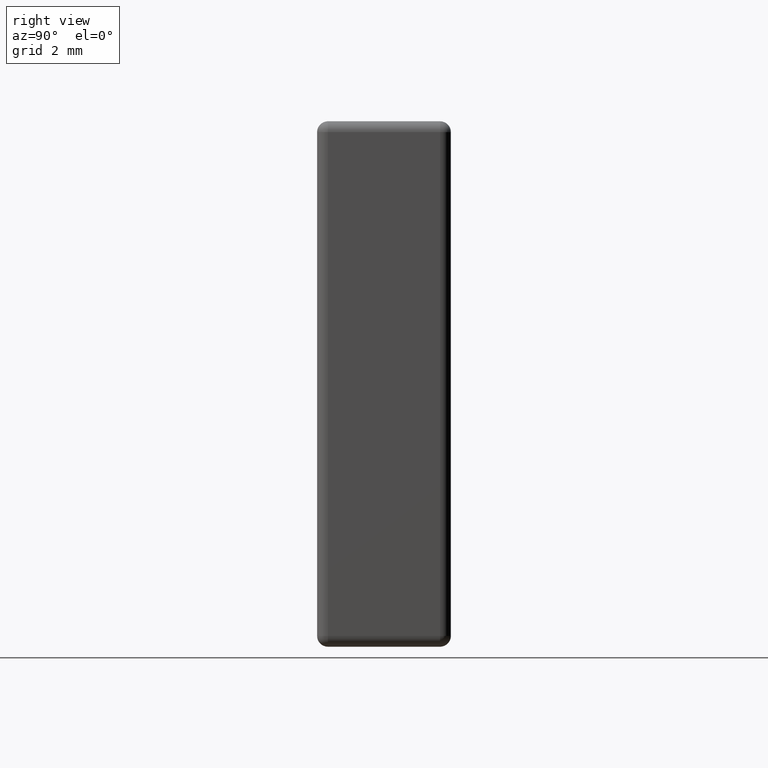
[diagram: clean part render]
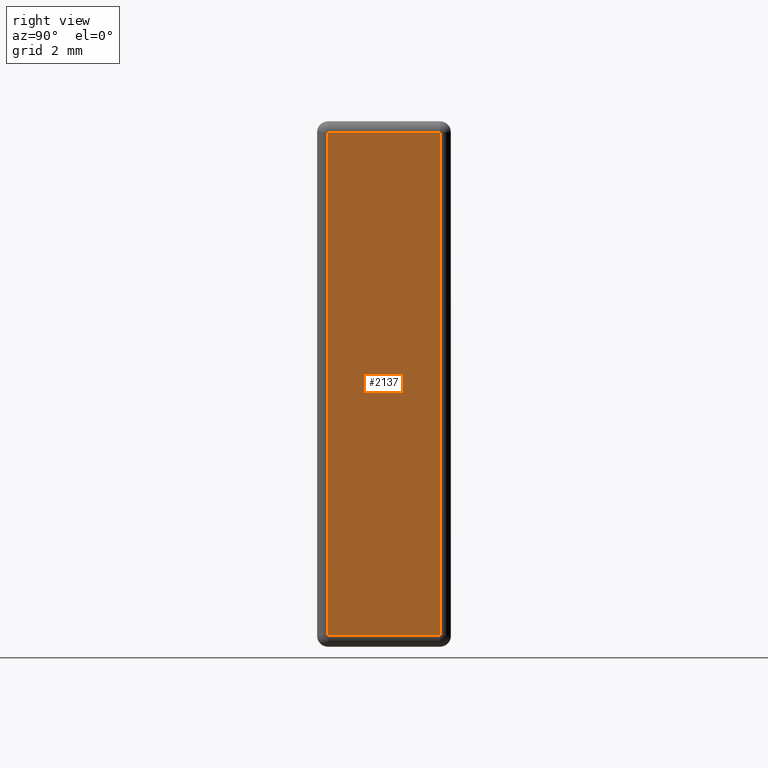
[diagram: same view with one face highlighted and labeled with its STEP entity id]
A machine part, right view. The second image highlights one B-rep face of the part: STEP entity #2137.
In plain terms, the highlighted planar face has unit normal (-1, 0, 0).
Its self-contained STEP definition (entity closure, byte-faithful):
#154 = CARTESIAN_POINT ( 'NONE',  ( 9.900000000000000355, 2.479520000000000390, -10.37951999999999941 ) ) ;
#209 = DIRECTION ( 'NONE',  ( 0.000000000000000000, -1.000000000000000000, 0.000000000000000000 ) ) ;
#218 = DIRECTION ( 'NONE',  ( 0.000000000000000000, 0.000000000000000000, -1.000000000000000000 ) ) ;
#380 = EDGE_CURVE ( 'NONE', #3145, #707, #1624, .T. ) ;
#388 = CARTESIAN_POINT ( 'NONE',  ( 9.900000000000000355, 0.000000000000000000, -10.37951999999999941 ) ) ;
#474 = DIRECTION ( 'NONE',  ( 0.000000000000000000, 0.000000000000000000, 1.000000000000000000 ) ) ;
#707 = VERTEX_POINT ( 'NONE', #1120 ) ;
#1032 = CARTESIAN_POINT ( 'NONE',  ( 9.900000000000000355, 2.479520000000000390, -0.2204799999999999816 ) ) ;
#1120 = CARTESIAN_POINT ( 'NONE',  ( 9.900000000000000355, 0.2204799999999999538, -0.2204799999999999816 ) ) ;
#1135 = VERTEX_POINT ( 'NONE', #3966 ) ;
#1254 = CARTESIAN_POINT ( 'NONE',  ( 9.900000000000000355, 0.2204799999999999538, 0.000000000000000000 ) ) ;
#1580 = VECTOR ( 'NONE', #3515, 1000.000000000000000 ) ;
#1624 = LINE ( 'NONE', #4091, #2069 ) ;
#2069 = VECTOR ( 'NONE', #209, 1000.000000000000000 ) ;
#2076 = VERTEX_POINT ( 'NONE', #154 ) ;
#2111 = LINE ( 'NONE', #388, #1580 ) ;
#2128 = DIRECTION ( 'NONE',  ( -1.000000000000000000, 0.000000000000000000, 0.000000000000000000 ) ) ;
#2137 = ADVANCED_FACE ( 'NONE', ( #3089 ), #4474, .F. ) ;
#2217 = EDGE_CURVE ( 'NONE', #1135, #2076, #2111, .T. ) ;
#2298 = EDGE_LOOP ( 'NONE', ( #3618, #3950, #2879, #3117 ) ) ;
#2474 = CARTESIAN_POINT ( 'NONE',  ( 9.900000000000000355, 0.000000000000000000, 0.000000000000000000 ) ) ;
#2477 = VECTOR ( 'NONE', #474, 1000.000000000000000 ) ;
#2879 = ORIENTED_EDGE ( 'NONE', *, *, #3216, .T. ) ;
#3089 = FACE_OUTER_BOUND ( 'NONE', #2298, .T. ) ;
#3117 = ORIENTED_EDGE ( 'NONE', *, *, #380, .T. ) ;
#3145 = VERTEX_POINT ( 'NONE', #1032 ) ;
#3159 = AXIS2_PLACEMENT_3D ( 'NONE', #2474, #2128, #4255 ) ;
#3216 = EDGE_CURVE ( 'NONE', #2076, #3145, #4011, .T. ) ;
#3321 = EDGE_CURVE ( 'NONE', #707, #1135, #4395, .T. ) ;
#3515 = DIRECTION ( 'NONE',  ( 0.000000000000000000, 1.000000000000000000, -0.000000000000000000 ) ) ;
#3618 = ORIENTED_EDGE ( 'NONE', *, *, #3321, .T. ) ;
#3950 = ORIENTED_EDGE ( 'NONE', *, *, #2217, .T. ) ;
#3966 = CARTESIAN_POINT ( 'NONE',  ( 9.900000000000000355, 0.2204799999999999538, -10.37951999999999941 ) ) ;
#4011 = LINE ( 'NONE', #4307, #2477 ) ;
#4091 = CARTESIAN_POINT ( 'NONE',  ( 9.900000000000000355, 0.000000000000000000, -0.2204799999999999816 ) ) ;
#4255 = DIRECTION ( 'NONE',  ( 0.000000000000000000, 0.000000000000000000, 1.000000000000000000 ) ) ;
#4307 = CARTESIAN_POINT ( 'NONE',  ( 9.900000000000000355, 2.479520000000000390, 0.000000000000000000 ) ) ;
#4377 = VECTOR ( 'NONE', #218, 1000.000000000000000 ) ;
#4395 = LINE ( 'NONE', #1254, #4377 ) ;
#4474 = PLANE ( 'NONE',  #3159 ) ;